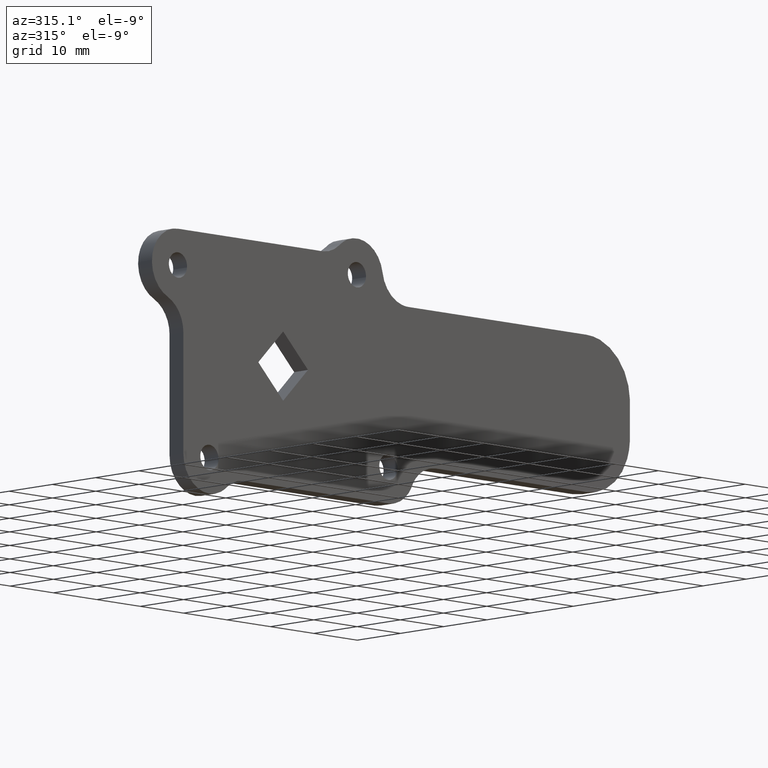
[diagram: clean part render]
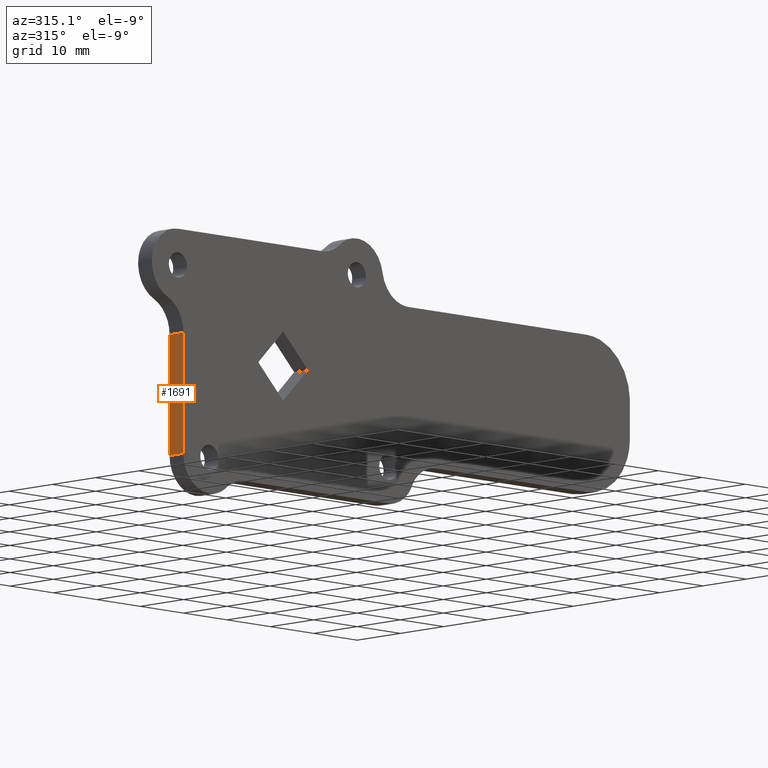
[diagram: same view with one face highlighted and labeled with its STEP entity id]
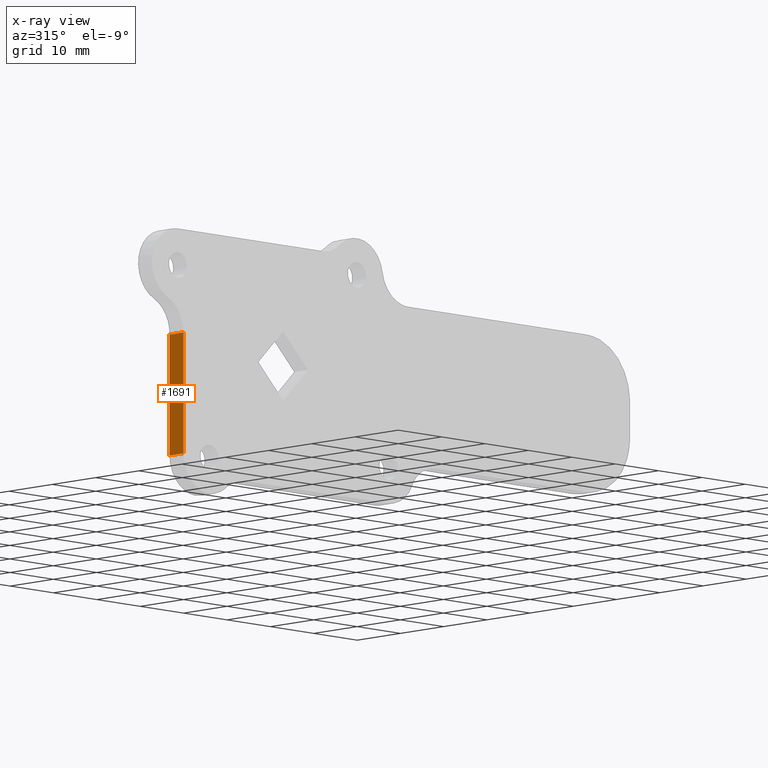
[diagram: x-ray of the same camera — body ghosted, the highlighted face saturated]
A machine part, auxiliary view. The second image highlights one B-rep face of the part: STEP entity #1691.
The next image is the same camera in x-ray: the body ghosted, the highlighted face saturated — about 0% of this face is hidden behind the body in this view.
In plain terms, the highlighted face is a freeform B-spline surface patch.
Its self-contained STEP definition (entity closure, byte-faithful):
#961=CARTESIAN_POINT('',(-22.999999987434101,0.0,-17.000000425683702));
#962=VERTEX_POINT('',#961);
#978=CARTESIAN_POINT('',(-22.999999987434101,0.0,2.980131574316295));
#979=VERTEX_POINT('',#978);
#980=CARTESIAN_POINT('',(-22.999999987434101,0.0,2.980131574316295));
#981=CARTESIAN_POINT('',(-22.999999987434101,0.0,-17.000000425683702));
#982=QUASI_UNIFORM_CURVE('',1,(#980,#981),.UNSPECIFIED.,.F.,.U.);
#983=EDGE_CURVE('',#979,#962,#982,.T.);
#1079=CARTESIAN_POINT('',(-22.999999987434101,-3.200000000000000,2.980131574316295));
#1080=VERTEX_POINT('',#1079);
#1094=CARTESIAN_POINT('',(-22.999999987434101,-3.200000000000000,-17.000000425683702));
#1095=VERTEX_POINT('',#1094);
#1096=CARTESIAN_POINT('',(-22.999999987434101,-3.200000000000000,2.980131574316295));
#1097=CARTESIAN_POINT('',(-22.999999987434101,-3.200000000000000,-17.000000425683702));
#1098=QUASI_UNIFORM_CURVE('',1,(#1096,#1097),.UNSPECIFIED.,.F.,.U.);
#1099=EDGE_CURVE('',#1080,#1095,#1098,.T.);
#1668=CARTESIAN_POINT('',(-22.999999987434101,-3.200000000000000,-17.000000425683702));
#1669=CARTESIAN_POINT('',(-22.999999987434101,0.0,-17.000000425683702));
#1670=QUASI_UNIFORM_CURVE('',1,(#1668,#1669),.UNSPECIFIED.,.F.,.U.);
#1671=EDGE_CURVE('',#1095,#962,#1670,.T.);
#1676=CARTESIAN_POINT('',(-22.999999987434101,-3.359840053876400,3.978139245167041));
#1677=CARTESIAN_POINT('',(-22.999999987434101,-3.359840053876400,-17.998007024716639));
#1678=CARTESIAN_POINT('',(-22.999999987434101,0.159840082486629,3.978139245167041));
#1679=CARTESIAN_POINT('',(-22.999999987434101,0.159840082486629,-17.998007024716639));
#1680=B_SPLINE_SURFACE_WITH_KNOTS('',1,1,((#1676,#1678),(#1677,#1679)),.UNSPECIFIED.,.F.,.F.,.U.,(2,2),(2,2),(0.0,21.976146269883682),(0.0,3.519680136363030),.UNSPECIFIED.);
#1681=ORIENTED_EDGE('',*,*,#983,.T.);
#1682=ORIENTED_EDGE('',*,*,#1671,.F.);
#1683=ORIENTED_EDGE('',*,*,#1099,.F.);
#1684=CARTESIAN_POINT('',(-22.999999987434101,-3.200000000000000,2.980131574316295));
#1685=CARTESIAN_POINT('',(-22.999999987434101,0.0,2.980131574316295));
#1686=QUASI_UNIFORM_CURVE('',1,(#1684,#1685),.UNSPECIFIED.,.F.,.U.);
#1687=EDGE_CURVE('',#1080,#979,#1686,.T.);
#1688=ORIENTED_EDGE('',*,*,#1687,.T.);
#1689=EDGE_LOOP('',(#1681,#1682,#1683,#1688));
#1690=FACE_OUTER_BOUND('',#1689,.T.);
#1691=ADVANCED_FACE('',(#1690),#1680,.F.);